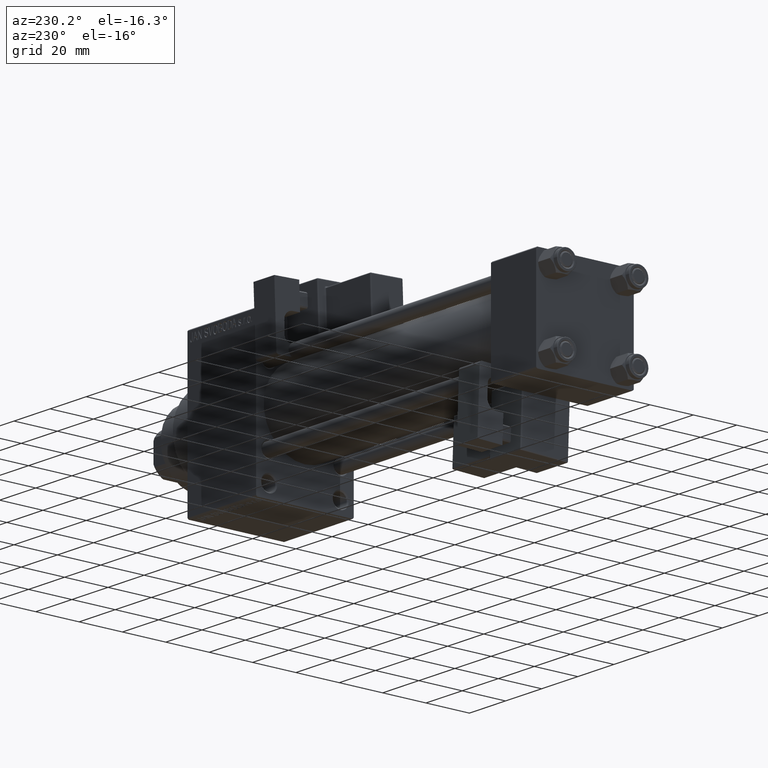
[diagram: clean part render]
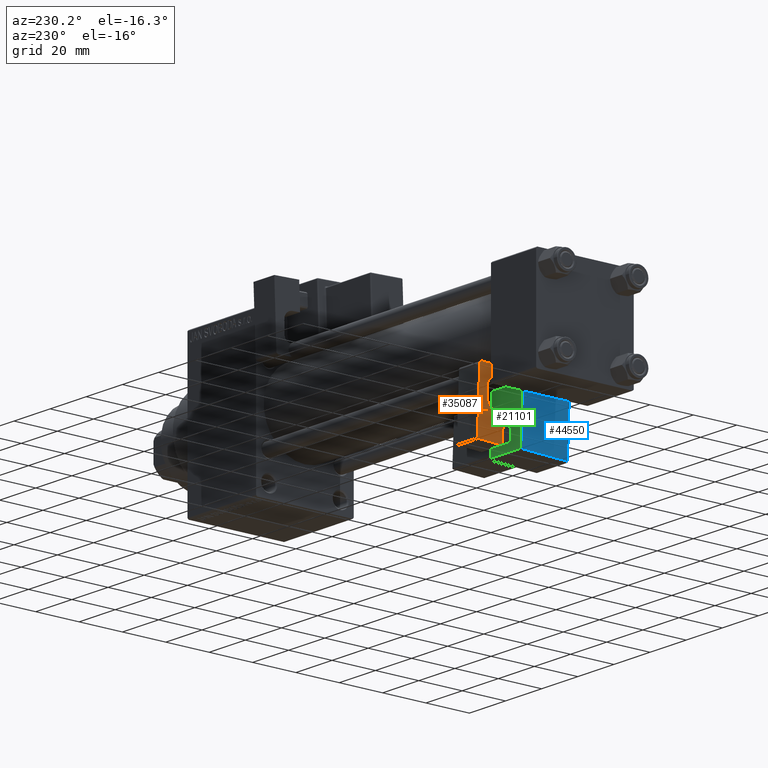
[diagram: same view with three faces highlighted in distinct colors, each labeled with its STEP entity id]
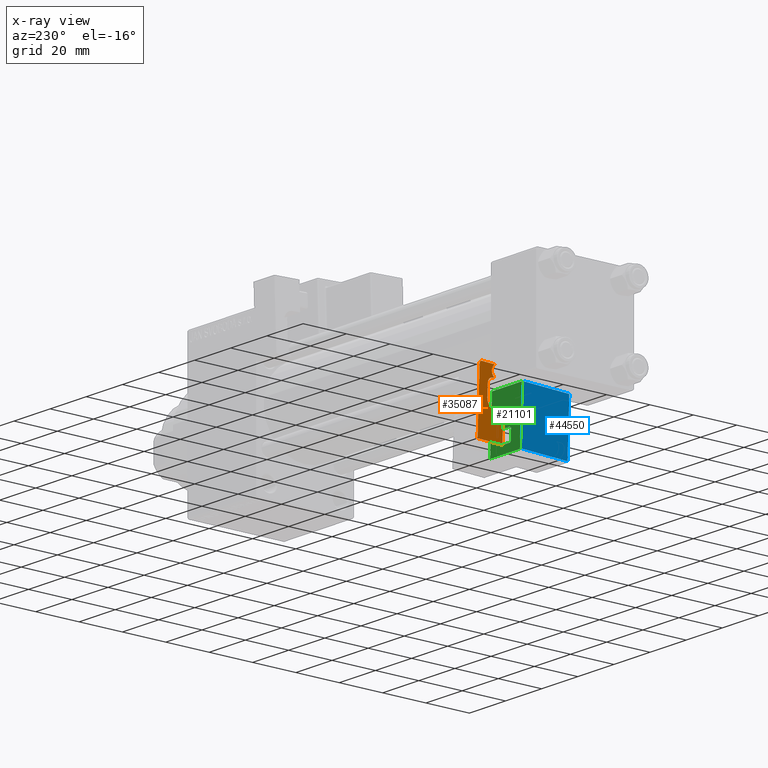
[diagram: x-ray of the same camera — body ghosted, the three highlighted faces saturated]
A machine part, auxiliary view with three faces highlighted in distinct colors.
The next image is the same camera in x-ray (body ghosted, the three faces saturated) — at least one of them is partly hidden behind the body in this view.
Their STEP definitions:

[orange] entity #35087 — the highlighted planar face has unit normal (1, 0, 0).
#333 = DIRECTION ( 'NONE',  ( -2.168404344971008868E-16, 1.000000000000000000, 0.000000000000000000 ) ) ;
#601 = LINE ( 'NONE', #38841, #12213 ) ;
#622 = CARTESIAN_POINT ( 'NONE',  ( -5.750000000000000000, 5.750000000000000000, 0.000000000000000000 ) ) ;
#780 = ORIENTED_EDGE ( 'NONE', *, *, #21326, .F. ) ;
#846 = DIRECTION ( 'NONE',  ( 0.000000000000000000, -3.071906155375595568E-16, -1.000000000000000000 ) ) ;
#1264 = ORIENTED_EDGE ( 'NONE', *, *, #25386, .F. ) ;
#1293 = EDGE_CURVE ( 'NONE', #47042, #14538, #27328, .T. ) ;
#2211 = EDGE_CURVE ( 'NONE', #2931, #36562, #601, .T. ) ;
#2786 = VECTOR ( 'NONE', #18883, 1000.000000000000000 ) ;
#2931 = VERTEX_POINT ( 'NONE', #13154 ) ;
#4382 = LINE ( 'NONE', #622, #2786 ) ;
#4415 = CARTESIAN_POINT ( 'NONE',  ( -5.750000000000000000, 4.750000000000000888, 29.00000000000000000 ) ) ;
#5299 = EDGE_CURVE ( 'NONE', #38939, #43025, #4382, .T. ) ;
#5795 = CIRCLE ( 'NONE', #33732, 4.000000000000000000 ) ;
#6418 = ORIENTED_EDGE ( 'NONE', *, *, #8299, .T. ) ;
#6955 = CARTESIAN_POINT ( 'NONE',  ( -5.749999999999998224, -5.750000000000000000, 0.000000000000000000 ) ) ;
#7855 = VECTOR ( 'NONE', #9357, 1000.000000000000000 ) ;
#8299 = EDGE_CURVE ( 'NONE', #23803, #29784, #28058, .T. ) ;
#8600 = CARTESIAN_POINT ( 'NONE',  ( -5.750000000000000000, 5.750000000000000000, 12.00000000000000000 ) ) ;
#8824 = CARTESIAN_POINT ( 'NONE',  ( -5.750000000000000000, -1.249999999999999334, 29.00000000000000000 ) ) ;
#8849 = DIRECTION ( 'NONE',  ( -0.000000000000000000, -0.000000000000000000, -1.000000000000000000 ) ) ;
#9034 = VERTEX_POINT ( 'NONE', #43733 ) ;
#9107 = LINE ( 'NONE', #24333, #47567 ) ;
#9357 = DIRECTION ( 'NONE',  ( 0.000000000000000000, 1.000000000000000000, 0.000000000000000000 ) ) ;
#9978 = EDGE_CURVE ( 'NONE', #2931, #48526, #41586, .T. ) ;
#10208 = ORIENTED_EDGE ( 'NONE', *, *, #5299, .T. ) ;
#10310 = PLANE ( 'NONE',  #17372 ) ;
#10412 = DIRECTION ( 'NONE',  ( 1.000000000000000000, 1.508455196501571183E-16, -0.000000000000000000 ) ) ;
#10465 = ORIENTED_EDGE ( 'NONE', *, *, #9978, .T. ) ;
#10535 = VERTEX_POINT ( 'NONE', #8824 ) ;
#11581 = DIRECTION ( 'NONE',  ( 1.000000000000000000, 1.508455196501571183E-16, -0.000000000000000000 ) ) ;
#11766 = ORIENTED_EDGE ( 'NONE', *, *, #2211, .F. ) ;
#12213 = VECTOR ( 'NONE', #846, 1000.000000000000000 ) ;
#13154 = CARTESIAN_POINT ( 'NONE',  ( -5.750000000000000000, 1.749999999999999112, 21.50000000000000000 ) ) ;
#14110 = EDGE_LOOP ( 'NONE', ( #26514, #38336, #38189, #10208, #1264, #780, #36794, #11766, #10465, #44735, #36369, #6418, #47957 ) ) ;
#14538 = VERTEX_POINT ( 'NONE', #33947 ) ;
#14747 = EDGE_CURVE ( 'NONE', #31738, #36562, #5795, .T. ) ;
#14931 = LINE ( 'NONE', #18424, #22491 ) ;
#15638 = VECTOR ( 'NONE', #8849, 1000.000000000000000 ) ;
#16098 = LINE ( 'NONE', #8600, #15638 ) ;
#17372 = AXIS2_PLACEMENT_3D ( 'NONE', #25541, #40808, #21807 ) ;
#17429 = CARTESIAN_POINT ( 'NONE',  ( -5.749999999999998224, -2.936149805543990521, 26.50000000000000000 ) ) ;
#17579 = LINE ( 'NONE', #21565, #7855 ) ;
#17927 = LINE ( 'NONE', #37672, #31950 ) ;
#18424 = CARTESIAN_POINT ( 'NONE',  ( -5.750000000000000000, 5.750000000000000000, 29.00000000000000000 ) ) ;
#18883 = DIRECTION ( 'NONE',  ( 1.508455196501571429E-16, -1.000000000000000000, 0.000000000000000000 ) ) ;
#19612 = CARTESIAN_POINT ( 'NONE',  ( -5.750000000000000000, 1.749999999999997558, 16.00000000000000000 ) ) ;
#21326 = EDGE_CURVE ( 'NONE', #31738, #9034, #28037, .T. ) ;
#21565 = CARTESIAN_POINT ( 'NONE',  ( -5.750000000000000000, -1.249999999999999334, 24.00000000000000000 ) ) ;
#21807 = DIRECTION ( 'NONE',  ( -1.508455196501571183E-16, 1.000000000000000000, 0.000000000000000000 ) ) ;
#22491 = VECTOR ( 'NONE', #48665, 1000.000000000000000 ) ;
#23803 = VERTEX_POINT ( 'NONE', #48465 ) ;
#24333 = CARTESIAN_POINT ( 'NONE',  ( -5.749999999999998224, -5.750000000000000000, 12.00000000000000000 ) ) ;
#25062 = CARTESIAN_POINT ( 'NONE',  ( -5.750000000000000000, -0.7500000000000007772, 24.00000000000000000 ) ) ;
#25329 = EDGE_CURVE ( 'NONE', #14538, #38939, #16098, .T. ) ;
#25386 = EDGE_CURVE ( 'NONE', #9034, #43025, #9107, .T. ) ;
#25541 = CARTESIAN_POINT ( 'NONE',  ( -5.750000000000000000, 5.750000000000000000, 12.00000000000000000 ) ) ;
#25644 = DIRECTION ( 'NONE',  ( -2.891205793294678326E-16, 1.000000000000000000, 0.000000000000000000 ) ) ;
#26255 = CARTESIAN_POINT ( 'NONE',  ( -5.749999999999998224, -0.7500000000000007772, 21.50000000000000000 ) ) ;
#26514 = ORIENTED_EDGE ( 'NONE', *, *, #47890, .F. ) ;
#27055 = CARTESIAN_POINT ( 'NONE',  ( -5.749999999999999112, -2.250000000000002665, 16.00000000000000000 ) ) ;
#27268 = AXIS2_PLACEMENT_3D ( 'NONE', #17429, #10412, #25644 ) ;
#27328 = CIRCLE ( 'NONE', #43305, 1.000000000000000000 ) ;
#27842 = LINE ( 'NONE', #35591, #27986 ) ;
#27986 = VECTOR ( 'NONE', #43108, 1000.000000000000114 ) ;
#28037 = LINE ( 'NONE', #39304, #30755 ) ;
#28058 = CIRCLE ( 'NONE', #27268, 3.000000000000000000 ) ;
#28840 = CARTESIAN_POINT ( 'NONE',  ( -5.750000000000000000, -1.249999999999999334, 24.00000000000000000 ) ) ;
#29096 = VERTEX_POINT ( 'NONE', #28840 ) ;
#29495 = CARTESIAN_POINT ( 'NONE',  ( -5.749999999999999112, -2.250000000000003553, 12.00000000000000000 ) ) ;
#29664 = DIRECTION ( 'NONE',  ( 0.000000000000000000, -0.7682212795973755171, -0.6401843996644802637 ) ) ;
#29784 = VERTEX_POINT ( 'NONE', #38636 ) ;
#30755 = VECTOR ( 'NONE', #31788, 1000.000000000000000 ) ;
#31368 = EDGE_CURVE ( 'NONE', #29096, #48526, #17579, .T. ) ;
#31738 = VERTEX_POINT ( 'NONE', #29495 ) ;
#31788 = DIRECTION ( 'NONE',  ( 1.508455196501571429E-16, -1.000000000000000000, 0.000000000000000000 ) ) ;
#31950 = VECTOR ( 'NONE', #29664, 1000.000000000000114 ) ;
#33732 = AXIS2_PLACEMENT_3D ( 'NONE', #27055, #11581, #333 ) ;
#33947 = CARTESIAN_POINT ( 'NONE',  ( -5.750000000000000000, 5.750000000000000000, 28.00000000000000000 ) ) ;
#34279 = DIRECTION ( 'NONE',  ( -1.000000000000000000, -1.508455196501571183E-16, 0.000000000000000000 ) ) ;
#35087 = ADVANCED_FACE ( 'NONE', ( #36067 ), #10310, .F. ) ;
#35591 = CARTESIAN_POINT ( 'NONE',  ( -5.750000000000000000, -1.249999999999999334, 29.00000000000000000 ) ) ;
#36067 = FACE_OUTER_BOUND ( 'NONE', #14110, .T. ) ;
#36369 = ORIENTED_EDGE ( 'NONE', *, *, #44017, .F. ) ;
#36562 = VERTEX_POINT ( 'NONE', #19612 ) ;
#36794 = ORIENTED_EDGE ( 'NONE', *, *, #14747, .T. ) ;
#37672 = CARTESIAN_POINT ( 'NONE',  ( -5.750000000000000000, 1.749999999999999778, 26.50000000000000355 ) ) ;
#38189 = ORIENTED_EDGE ( 'NONE', *, *, #25329, .T. ) ;
#38336 = ORIENTED_EDGE ( 'NONE', *, *, #1293, .T. ) ;
#38636 = CARTESIAN_POINT ( 'NONE',  ( -5.750000000000000000, -1.015596606550550618, 28.80466383879212700 ) ) ;
#38841 = CARTESIAN_POINT ( 'NONE',  ( -5.750000000000000000, 1.750000000000000000, 24.00000000000000000 ) ) ;
#38939 = VERTEX_POINT ( 'NONE', #46659 ) ;
#39304 = CARTESIAN_POINT ( 'NONE',  ( -5.750000000000000000, 5.750000000000000000, 12.00000000000000000 ) ) ;
#39599 = DIRECTION ( 'NONE',  ( -0.000000000000000000, -0.000000000000000000, -1.000000000000000000 ) ) ;
#40808 = DIRECTION ( 'NONE',  ( 1.000000000000000000, 1.508455196501571183E-16, -0.000000000000000000 ) ) ;
#41273 = DIRECTION ( 'NONE',  ( 1.000000000000000000, 1.508455196501571183E-16, -0.000000000000000000 ) ) ;
#41586 = CIRCLE ( 'NONE', #47956, 2.500000000000000000 ) ;
#42030 = DIRECTION ( 'NONE',  ( 0.000000000000000000, 1.000000000000000000, 0.000000000000000000 ) ) ;
#43025 = VERTEX_POINT ( 'NONE', #6955 ) ;
#43108 = DIRECTION ( 'NONE',  ( 0.000000000000000000, 0.7682212795973759611, -0.6401843996644797086 ) ) ;
#43305 = AXIS2_PLACEMENT_3D ( 'NONE', #45530, #34279, #42030 ) ;
#43733 = CARTESIAN_POINT ( 'NONE',  ( -5.749999999999998224, -5.750000000000000000, 12.00000000000000000 ) ) ;
#44017 = EDGE_CURVE ( 'NONE', #23803, #29096, #17927, .T. ) ;
#44735 = ORIENTED_EDGE ( 'NONE', *, *, #31368, .F. ) ;
#45478 = EDGE_CURVE ( 'NONE', #10535, #29784, #27842, .T. ) ;
#45530 = CARTESIAN_POINT ( 'NONE',  ( -5.750000000000000000, 4.750000000000000000, 28.00000000000000000 ) ) ;
#46659 = CARTESIAN_POINT ( 'NONE',  ( -5.750000000000000000, 5.750000000000000000, 0.000000000000000000 ) ) ;
#47042 = VERTEX_POINT ( 'NONE', #4415 ) ;
#47567 = VECTOR ( 'NONE', #39599, 1000.000000000000000 ) ;
#47890 = EDGE_CURVE ( 'NONE', #47042, #10535, #14931, .T. ) ;
#47956 = AXIS2_PLACEMENT_3D ( 'NONE', #26255, #41273, #49248 ) ;
#47957 = ORIENTED_EDGE ( 'NONE', *, *, #45478, .F. ) ;
#48465 = CARTESIAN_POINT ( 'NONE',  ( -5.750000000000000000, -1.015596606550550396, 24.19533616120787300 ) ) ;
#48526 = VERTEX_POINT ( 'NONE', #25062 ) ;
#48665 = DIRECTION ( 'NONE',  ( 0.000000000000000000, -1.000000000000000000, 0.000000000000000000 ) ) ;
#49248 = DIRECTION ( 'NONE',  ( 0.000000000000000000, 1.000000000000000000, 0.000000000000000000 ) ) ;

[blue] entity #44550 — the highlighted planar face has unit normal (1, 0, -0).
#2492 = LINE ( 'NONE', #25471, #24059 ) ;
#4850 = DIRECTION ( 'NONE',  ( 1.000000000000000000, 0.000000000000000000, -1.334402673828313093E-16 ) ) ;
#5255 = EDGE_CURVE ( 'NONE', #20925, #12155, #18135, .T. ) ;
#6273 = DIRECTION ( 'NONE',  ( -1.334402673828313093E-16, 0.000000000000000000, -1.000000000000000000 ) ) ;
#6384 = LINE ( 'NONE', #6632, #32474 ) ;
#6632 = CARTESIAN_POINT ( 'NONE',  ( -8.750000000000003553, -33.75000000000000000, -0.5000000000000004441 ) ) ;
#7389 = DIRECTION ( 'NONE',  ( 1.334402673828313093E-16, -0.000000000000000000, 1.000000000000000000 ) ) ;
#7550 = ORIENTED_EDGE ( 'NONE', *, *, #46657, .T. ) ;
#12155 = VERTEX_POINT ( 'NONE', #30457 ) ;
#14501 = ORIENTED_EDGE ( 'NONE', *, *, #31740, .T. ) ;
#16790 = AXIS2_PLACEMENT_3D ( 'NONE', #20577, #4850, #39593 ) ;
#17760 = CARTESIAN_POINT ( 'NONE',  ( -8.750000000000003553, -12.25000000000000000, -1.000000000000000888 ) ) ;
#18135 = LINE ( 'NONE', #37383, #39483 ) ;
#20577 = CARTESIAN_POINT ( 'NONE',  ( -8.750000000000000000, -33.75000000000000000, 25.00000000000000000 ) ) ;
#20925 = VERTEX_POINT ( 'NONE', #46612 ) ;
#22227 = VECTOR ( 'NONE', #6273, 1000.000000000000000 ) ;
#23732 = VERTEX_POINT ( 'NONE', #35259 ) ;
#24059 = VECTOR ( 'NONE', #33226, 1000.000000000000000 ) ;
#25471 = CARTESIAN_POINT ( 'NONE',  ( -8.750000000000000000, -33.75000000000000000, 24.50000000000000000 ) ) ;
#26649 = ORIENTED_EDGE ( 'NONE', *, *, #5255, .T. ) ;
#27479 = EDGE_CURVE ( 'NONE', #23732, #20925, #6384, .T. ) ;
#28795 = EDGE_LOOP ( 'NONE', ( #26649, #7550, #14501, #48086 ) ) ;
#30457 = CARTESIAN_POINT ( 'NONE',  ( -8.750000000000000000, -33.25000000000000000, 24.50000000000000000 ) ) ;
#31740 = EDGE_CURVE ( 'NONE', #32421, #23732, #40513, .T. ) ;
#32421 = VERTEX_POINT ( 'NONE', #36023 ) ;
#32474 = VECTOR ( 'NONE', #37122, 1000.000000000000000 ) ;
#33226 = DIRECTION ( 'NONE',  ( 0.000000000000000000, 1.000000000000000000, 0.000000000000000000 ) ) ;
#34842 = FACE_OUTER_BOUND ( 'NONE', #28795, .T. ) ;
#35259 = CARTESIAN_POINT ( 'NONE',  ( -8.750000000000003553, -12.25000000000000000, -0.5000000000000001110 ) ) ;
#36023 = CARTESIAN_POINT ( 'NONE',  ( -8.750000000000000000, -12.25000000000000000, 24.50000000000000000 ) ) ;
#37122 = DIRECTION ( 'NONE',  ( -0.000000000000000000, -1.000000000000000000, -0.000000000000000000 ) ) ;
#37383 = CARTESIAN_POINT ( 'NONE',  ( -8.750000000000000000, -33.25000000000000000, 25.00000000000000000 ) ) ;
#39483 = VECTOR ( 'NONE', #7389, 1000.000000000000000 ) ;
#39593 = DIRECTION ( 'NONE',  ( -1.334402673828313093E-16, 0.000000000000000000, -1.000000000000000000 ) ) ;
#40513 = LINE ( 'NONE', #17760, #22227 ) ;
#41366 = PLANE ( 'NONE',  #16790 ) ;
#44550 = ADVANCED_FACE ( 'NONE', ( #34842 ), #41366, .F. ) ;
#46612 = CARTESIAN_POINT ( 'NONE',  ( -8.750000000000003553, -33.25000000000000000, -0.5000000000000001110 ) ) ;
#46657 = EDGE_CURVE ( 'NONE', #12155, #32421, #2492, .T. ) ;
#48086 = ORIENTED_EDGE ( 'NONE', *, *, #27479, .T. ) ;

[green] entity #21101 — the highlighted planar face has unit normal (0, 0.9994, 0.0353).
#59 = LINE ( 'NONE', #18558, #48441 ) ;
#573 = CARTESIAN_POINT ( 'NONE',  ( 8.750000000000000000, -11.75000000000000000, 24.49999999999999645 ) ) ;
#929 = DIRECTION ( 'NONE',  ( -1.445602896647339163E-16, -0.000000000000000000, 1.000000000000000000 ) ) ;
#1007 = CARTESIAN_POINT ( 'NONE',  ( 8.250000000000003553, -11.75000000000000000, -1.000000000000000888 ) ) ;
#2840 = FACE_BOUND ( 'NONE', #44699, .T. ) ;
#3284 = ORIENTED_EDGE ( 'NONE', *, *, #30439, .T. ) ;
#4402 = VERTEX_POINT ( 'NONE', #32514 ) ;
#4815 = ORIENTED_EDGE ( 'NONE', *, *, #43679, .T. ) ;
#4816 = DIRECTION ( 'NONE',  ( 1.000000000000000000, -0.000000000000000000, -1.982541115402065110E-16 ) ) ;
#5103 = LINE ( 'NONE', #20332, #12394 ) ;
#5314 = LINE ( 'NONE', #573, #40503 ) ;
#5428 = CARTESIAN_POINT ( 'NONE',  ( -2.499999999999999556, -11.75000000000000000, 9.000000000000001776 ) ) ;
#6102 = PLANE ( 'NONE',  #22775 ) ;
#6224 = VECTOR ( 'NONE', #929, 1000.000000000000000 ) ;
#6338 = LINE ( 'NONE', #48310, #29382 ) ;
#6882 = LINE ( 'NONE', #33364, #48028 ) ;
#7013 = VECTOR ( 'NONE', #34363, 1000.000000000000000 ) ;
#7306 = VERTEX_POINT ( 'NONE', #33210 ) ;
#8991 = ORIENTED_EDGE ( 'NONE', *, *, #48202, .T. ) ;
#9023 = CARTESIAN_POINT ( 'NONE',  ( -3.000000000000000000, -11.75000000000000000, 8.500000000000007105 ) ) ;
#10373 = DIRECTION ( 'NONE',  ( 1.334402673828313093E-16, -0.000000000000000000, 1.000000000000000000 ) ) ;
#10775 = ORIENTED_EDGE ( 'NONE', *, *, #28016, .T. ) ;
#10822 = CARTESIAN_POINT ( 'NONE',  ( 0.000000000000000000, -11.75000000000000000, 0.000000000000000000 ) ) ;
#12004 = LINE ( 'NONE', #1007, #40698 ) ;
#12394 = VECTOR ( 'NONE', #42848, 1000.000000000000114 ) ;
#12473 = CARTESIAN_POINT ( 'NONE',  ( -8.250000000000003553, -11.75000000000000000, -0.5000000000000002220 ) ) ;
#12689 = VECTOR ( 'NONE', #22020, 1000.000000000000000 ) ;
#13044 = VERTEX_POINT ( 'NONE', #12473 ) ;
#14423 = CARTESIAN_POINT ( 'NONE',  ( -2.499999999999976907, -11.75000000000000000, 3.000000000000000444 ) ) ;
#15022 = LINE ( 'NONE', #45507, #12689 ) ;
#16207 = VERTEX_POINT ( 'NONE', #17490 ) ;
#17248 = ORIENTED_EDGE ( 'NONE', *, *, #29371, .T. ) ;
#17490 = CARTESIAN_POINT ( 'NONE',  ( -8.250000000000000000, -11.75000000000000000, 24.50000000000000000 ) ) ;
#17639 = VERTEX_POINT ( 'NONE', #9023 ) ;
#18558 = CARTESIAN_POINT ( 'NONE',  ( -8.750000000000003553, -11.75000000000000000, -0.5000000000000002220 ) ) ;
#18578 = CARTESIAN_POINT ( 'NONE',  ( 3.000000000000000000, -11.75000000000000000, 8.500000000000000000 ) ) ;
#19366 = LINE ( 'NONE', #37888, #22999 ) ;
#19506 = EDGE_CURVE ( 'NONE', #36984, #30224, #5103, .T. ) ;
#20298 = ORIENTED_EDGE ( 'NONE', *, *, #38067, .T. ) ;
#20332 = CARTESIAN_POINT ( 'NONE',  ( 3.000000000000000888, -11.75000000000000000, 3.500000000000008438 ) ) ;
#21101 = ADVANCED_FACE ( 'NONE', ( #28832, #2840 ), #6102, .T. ) ;
#22020 = DIRECTION ( 'NONE',  ( -0.7071067811865426878, -0.000000000000000000, 0.7071067811865524577 ) ) ;
#22775 = AXIS2_PLACEMENT_3D ( 'NONE', #10822, #33817, #44338 ) ;
#22832 = VERTEX_POINT ( 'NONE', #37710 ) ;
#22999 = VECTOR ( 'NONE', #38125, 1000.000000000000000 ) ;
#23320 = CARTESIAN_POINT ( 'NONE',  ( 3.000000000000000888, -11.75000000000000000, 3.500000000000008438 ) ) ;
#25560 = DIRECTION ( 'NONE',  ( 1.000000000000000000, -0.000000000000000000, 7.228014483236695816E-17 ) ) ;
#28016 = EDGE_CURVE ( 'NONE', #7306, #13044, #59, .T. ) ;
#28592 = CARTESIAN_POINT ( 'NONE',  ( 8.250000000000000000, -11.75000000000000000, 24.49999999999999645 ) ) ;
#28832 = FACE_OUTER_BOUND ( 'NONE', #42321, .T. ) ;
#29108 = DIRECTION ( 'NONE',  ( 0.000000000000000000, 0.000000000000000000, -1.000000000000000000 ) ) ;
#29143 = VERTEX_POINT ( 'NONE', #28592 ) ;
#29371 = EDGE_CURVE ( 'NONE', #16207, #29143, #5314, .T. ) ;
#29382 = VECTOR ( 'NONE', #25560, 1000.000000000000000 ) ;
#29769 = DIRECTION ( 'NONE',  ( 0.7071067811865472397, -0.000000000000000000, -0.7071067811865479058 ) ) ;
#30224 = VERTEX_POINT ( 'NONE', #23320 ) ;
#30439 = EDGE_CURVE ( 'NONE', #4402, #47018, #34760, .T. ) ;
#30532 = DIRECTION ( 'NONE',  ( -1.000000000000000000, 0.000000000000000000, -0.000000000000000000 ) ) ;
#30883 = ORIENTED_EDGE ( 'NONE', *, *, #39664, .T. ) ;
#32514 = CARTESIAN_POINT ( 'NONE',  ( -3.000000000000000000, -11.75000000000000000, 3.500000000000022204 ) ) ;
#33032 = VERTEX_POINT ( 'NONE', #5428 ) ;
#33164 = ORIENTED_EDGE ( 'NONE', *, *, #19506, .T. ) ;
#33210 = CARTESIAN_POINT ( 'NONE',  ( 8.250000000000003553, -11.75000000000000000, -0.5000000000000002220 ) ) ;
#33364 = CARTESIAN_POINT ( 'NONE',  ( -8.250000000000000000, -11.75000000000000000, 25.00000000000000000 ) ) ;
#33817 = DIRECTION ( 'NONE',  ( 0.000000000000000000, 1.000000000000000000, 0.000000000000000000 ) ) ;
#34363 = DIRECTION ( 'NONE',  ( -0.7071067811865524577, 0.000000000000000000, -0.7071067811865426878 ) ) ;
#34675 = CARTESIAN_POINT ( 'NONE',  ( 3.000000000000000000, -11.75000000000000000, 9.000000000000001776 ) ) ;
#34760 = LINE ( 'NONE', #37527, #36570 ) ;
#34921 = LINE ( 'NONE', #34675, #6224 ) ;
#35376 = EDGE_CURVE ( 'NONE', #17639, #4402, #48101, .T. ) ;
#35494 = ORIENTED_EDGE ( 'NONE', *, *, #35376, .T. ) ;
#36492 = EDGE_CURVE ( 'NONE', #22832, #33032, #19366, .T. ) ;
#36516 = CARTESIAN_POINT ( 'NONE',  ( 2.499999999999993339, -11.75000000000000000, 3.000000000000000888 ) ) ;
#36570 = VECTOR ( 'NONE', #29769, 1000.000000000000000 ) ;
#36704 = EDGE_CURVE ( 'NONE', #47018, #36984, #6338, .T. ) ;
#36850 = CARTESIAN_POINT ( 'NONE',  ( -3.000000000000000000, -11.75000000000000000, 9.000000000000001776 ) ) ;
#36984 = VERTEX_POINT ( 'NONE', #36516 ) ;
#37310 = VECTOR ( 'NONE', #29108, 1000.000000000000000 ) ;
#37527 = CARTESIAN_POINT ( 'NONE',  ( -2.499999999999978684, -11.75000000000000000, 3.000000000000000444 ) ) ;
#37710 = CARTESIAN_POINT ( 'NONE',  ( 2.500000000000006661, -11.75000000000000000, 9.000000000000001776 ) ) ;
#37879 = LINE ( 'NONE', #38366, #7013 ) ;
#37888 = CARTESIAN_POINT ( 'NONE',  ( 3.000000000000000000, -11.75000000000000000, 9.000000000000001776 ) ) ;
#38067 = EDGE_CURVE ( 'NONE', #43266, #22832, #15022, .T. ) ;
#38125 = DIRECTION ( 'NONE',  ( -1.000000000000000000, 0.000000000000000000, 0.000000000000000000 ) ) ;
#38366 = CARTESIAN_POINT ( 'NONE',  ( -3.000000000000000000, -11.75000000000000000, 8.500000000000007105 ) ) ;
#39109 = EDGE_CURVE ( 'NONE', #33032, #17639, #37879, .T. ) ;
#39664 = EDGE_CURVE ( 'NONE', #30224, #43266, #34921, .T. ) ;
#40007 = ORIENTED_EDGE ( 'NONE', *, *, #36492, .T. ) ;
#40503 = VECTOR ( 'NONE', #4816, 1000.000000000000000 ) ;
#40698 = VECTOR ( 'NONE', #41764, 1000.000000000000000 ) ;
#41764 = DIRECTION ( 'NONE',  ( 1.334402673828313339E-16, -0.000000000000000000, -1.000000000000000000 ) ) ;
#42321 = EDGE_LOOP ( 'NONE', ( #10775, #8991, #17248, #4815 ) ) ;
#42848 = DIRECTION ( 'NONE',  ( 0.7071067811865474617, -0.000000000000000000, 0.7071067811865474617 ) ) ;
#43266 = VERTEX_POINT ( 'NONE', #18578 ) ;
#43679 = EDGE_CURVE ( 'NONE', #29143, #7306, #12004, .T. ) ;
#44338 = DIRECTION ( 'NONE',  ( 0.000000000000000000, -0.000000000000000000, 1.000000000000000000 ) ) ;
#44699 = EDGE_LOOP ( 'NONE', ( #30883, #20298, #40007, #48274, #35494, #3284, #48286, #33164 ) ) ;
#45507 = CARTESIAN_POINT ( 'NONE',  ( 2.500000000000006661, -11.75000000000000000, 9.000000000000001776 ) ) ;
#47018 = VERTEX_POINT ( 'NONE', #14423 ) ;
#48028 = VECTOR ( 'NONE', #10373, 1000.000000000000000 ) ;
#48101 = LINE ( 'NONE', #36850, #37310 ) ;
#48202 = EDGE_CURVE ( 'NONE', #13044, #16207, #6882, .T. ) ;
#48274 = ORIENTED_EDGE ( 'NONE', *, *, #39109, .T. ) ;
#48286 = ORIENTED_EDGE ( 'NONE', *, *, #36704, .T. ) ;
#48310 = CARTESIAN_POINT ( 'NONE',  ( 3.000000000000000888, -11.75000000000000000, 3.000000000000000888 ) ) ;
#48441 = VECTOR ( 'NONE', #30532, 1000.000000000000000 ) ;